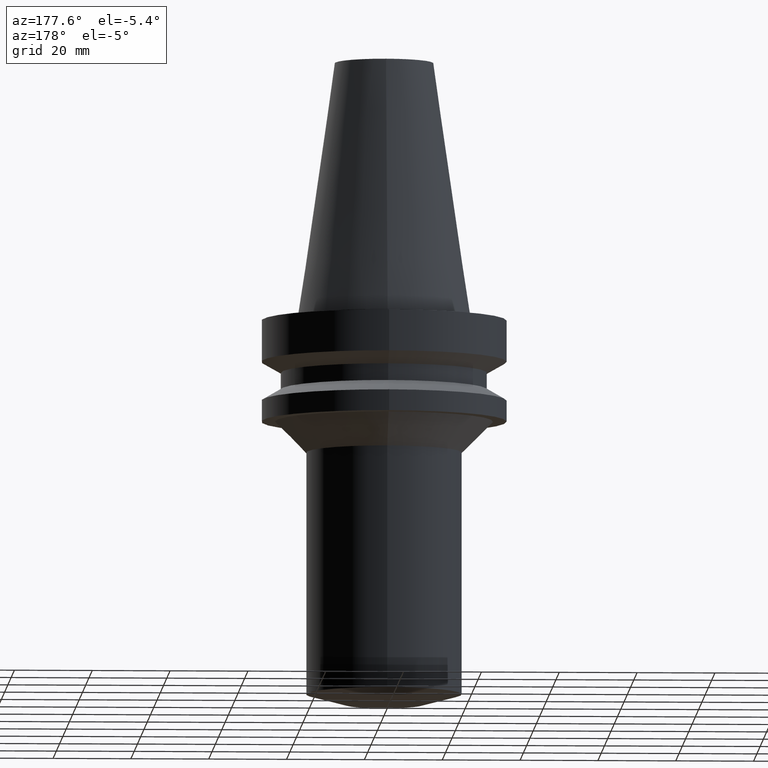
[diagram: clean part render]
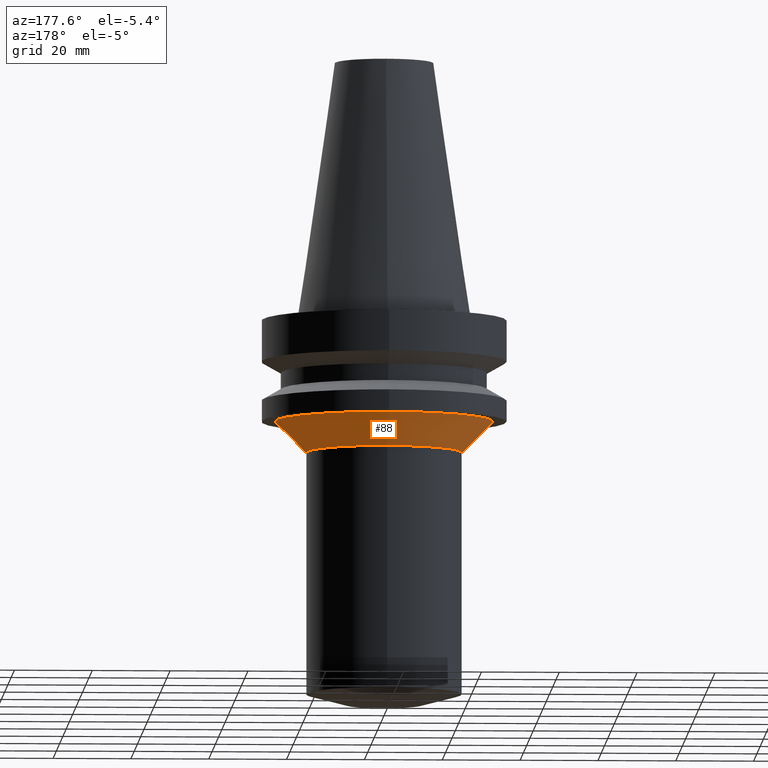
[diagram: same view with one face highlighted and labeled with its STEP entity id]
A machine part, auxiliary view. The second image highlights one B-rep face of the part: STEP entity #88.
In plain terms, the highlighted conical surface has half-angle 45 deg.
Its self-contained STEP definition (entity closure, byte-faithful):
#68=EDGE_CURVE('Unnamed[1]',#163,#163,#164,.T.);
#76=EDGE_CURVE('Unnamed[1]',#176,#176,#177,.T.);
#88=ADVANCED_FACE('Unnamed[1]',(#193,#194),#195,.T.);
#163=VERTEX_POINT('',#287);
#164=CIRCLE('',#288,28.0000000000002);
#176=VERTEX_POINT('',#303);
#177=CIRCLE('',#304,20.0);
#193=FACE_BOUND('',#323,.T.);
#194=FACE_BOUND('',#324,.T.);
#195=CONICAL_SURFACE('',#325,24.0000000000001,0.785398163397448);
#287=CARTESIAN_POINT('',(1.65327317884891E-015,28.0000000000003,-26.9999999999997));
#288=AXIS2_PLACEMENT_3D('',#418,#419,#420);
#303=CARTESIAN_POINT('',(2.14313189850787E-015,20.0,-35.0));
#304=AXIS2_PLACEMENT_3D('',#433,#434,#435);
#323=EDGE_LOOP('',(#450));
#324=EDGE_LOOP('',(#451));
#325=AXIS2_PLACEMENT_3D('',#452,#453,#454);
#418=CARTESIAN_POINT('',(1.65327317884891E-015,2.54630737481502E-014,-26.9999999999997));
#419=DIRECTION('',(6.12323399573676E-017,-5.53589630679993E-016,-1.0));
#420=DIRECTION('',(2.90704357319019E-032,1.0,-5.53589630679993E-016));
#433=CARTESIAN_POINT('',(2.14313189850787E-015,2.10343567027101E-014,-35.0));
#434=DIRECTION('',(6.12323399573677E-017,-5.53589630679993E-016,-1.0));
#435=DIRECTION('',(2.90704357319019E-032,1.0,-5.53589630679993E-016));
#450=ORIENTED_EDGE('',*,*,#76,.F.);
#451=ORIENTED_EDGE('',*,*,#68,.T.);
#452=CARTESIAN_POINT('',(1.89820253867839E-015,2.32487152254302E-014,-30.9999999999998));
#453=DIRECTION('',(-6.12323399573677E-017,5.53589630679993E-016,1.0));
#454=DIRECTION('',(2.90704357319019E-032,1.0,-5.53589630679993E-016));